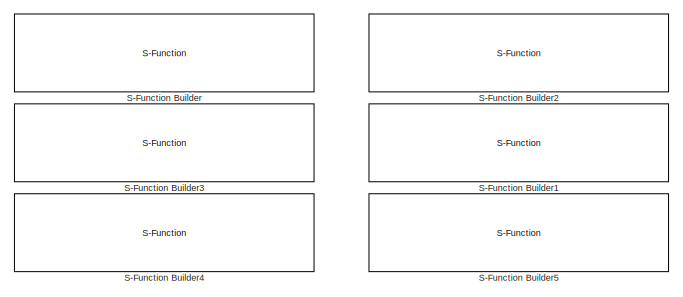
[diagram: root canvas - part 1/4, top center region]
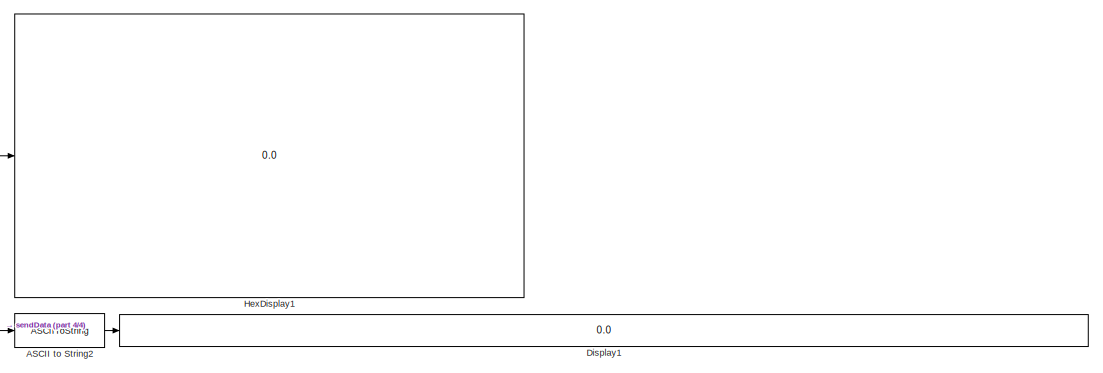
[diagram: root canvas - part 2/4, middle right region]
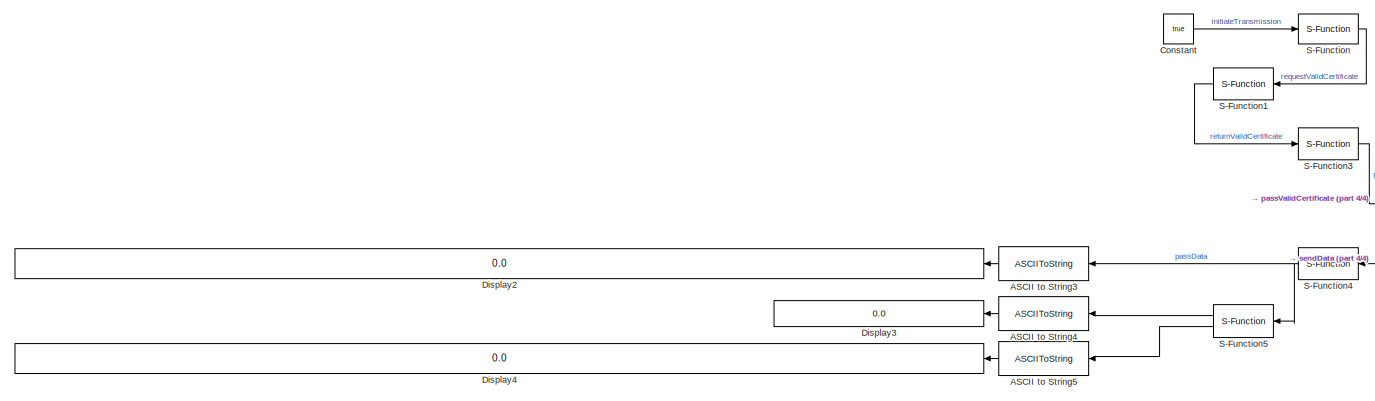
[diagram: root canvas - part 3/4, bottom left region]
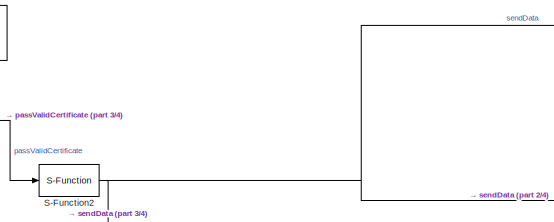
[diagram: root canvas - part 4/4, bottom center region]
MODEL slx_33cd072985de
KIND model
CONFIG AbsTol = auto
CONFIG EnableMultiTasking = off
CONFIG FixedStep = auto
CONFIG MaxStep = auto
CONFIG MinStep = auto
CONFIG RelTol = 1e-3
CONFIG SampleTimeConstraint = Unconstrained
CONFIG SolverName = VariableStepAuto
CONFIG StartTime = 0.0
CONFIG StopTime = 10.0
BLOCK [ASCIIToString] ASCII to String2
BLOCK [ASCIIToString] ASCII to String3
BLOCK [ASCIIToString] ASCII to String4
BLOCK [ASCIIToString] ASCII to String5
BLOCK [Constant] Constant
  OutDataTypeStr = boolean
  Value = true
BLOCK [Display] Display1
  Decimation = 1
  Ports = [1]
BLOCK [Display] Display2
  Decimation = 1
  Ports = [1]
BLOCK [Display] Display3
  Decimation = 1
  Ports = [1]
BLOCK [Display] Display4
  Decimation = 1
  Ports = [1]
BLOCK [Display] HexDisplay1
  Decimation = 1
  Format = hex (Stored Integer)
  Ports = [1]
BLOCK [S-Function] S-Function
  EnableBusSupport = off
  FunctionName = sfunc_GW1
  Ports = [1, 1]
  SFcnIsStateOwnerBlock = off
  SFunctionDeploymentMode = off
BLOCK [S-Function] S-Function Builder
  Commented = on
  CopyFcn = set_param(gcbh,'LinkStatus','none')
  EnableBusSupport = off
  FunctionName = sfunc_GW1
  OpenFcn = sfunctionwizard(gcbh)
  Ports = [1, 1]
  SFcnIsStateOwnerBlock = off
  SFunctionDeploymentMode = off
  SFunctionModules = sfunc_GW1_wrapper
BLOCK [S-Function] S-Function Builder1
  Commented = on
  CopyFcn = set_param(gcbh,'LinkStatus','none')
  EnableBusSupport = off
  FunctionName = sfunc_GSE1
  OpenFcn = sfunctionwizard(gcbh)
  Ports = [1, 1]
  SFcnIsStateOwnerBlock = off
  SFunctionDeploymentMode = off
  SFunctionModules = sfunc_GSE1_wrapper
BLOCK [S-Function] S-Function Builder2
  Commented = on
  CopyFcn = set_param(gcbh,'LinkStatus','none')
  EnableBusSupport = off
  FunctionName = sfunc_ECOM
  OpenFcn = sfunctionwizard(gcbh)
  Ports = [1, 1]
  SFcnIsStateOwnerBlock = off
  SFunctionDeploymentMode = off
  SFunctionModules = sfunc_ECOM_wrapper
BLOCK [S-Function] S-Function Builder3
  Commented = on
  CopyFcn = set_param(gcbh,'LinkStatus','none')
  EnableBusSupport = off
  FunctionName = sfunc_GW2
  OpenFcn = sfunctionwizard(gcbh)
  Ports = [1, 1]
  SFcnIsStateOwnerBlock = off
  SFunctionDeploymentMode = off
  SFunctionModules = sfunc_GW2_wrapper
BLOCK [S-Function] S-Function Builder4
  Commented = on
  CopyFcn = set_param(gcbh,'LinkStatus','none')
  EnableBusSupport = off
  FunctionName = sfunc_GW3
  OpenFcn = sfunctionwizard(gcbh)
  Ports = [1, 1]
  SFcnIsStateOwnerBlock = off
  SFunctionDeploymentMode = off
  SFunctionModules = sfunc_GW3_wrapper
BLOCK [S-Function] S-Function Builder5
  Commented = on
  CopyFcn = set_param(gcbh,'LinkStatus','none')
  EnableBusSupport = off
  FunctionName = sfunc_GSE2
  OpenFcn = sfunctionwizard(gcbh)
  Ports = [1, 2]
  SFcnIsStateOwnerBlock = off
  SFunctionDeploymentMode = off
  SFunctionModules = sfunc_GSE2_wrapper
BLOCK [S-Function] S-Function1
  EnableBusSupport = off
  FunctionName = sfunc_GSE1
  Ports = [1, 1]
  SFcnIsStateOwnerBlock = off
  SFunctionDeploymentMode = off
BLOCK [S-Function] S-Function2
  EnableBusSupport = off
  FunctionName = sfunc_ECOM
  Ports = [1, 1]
  SFcnIsStateOwnerBlock = off
  SFunctionDeploymentMode = off
BLOCK [S-Function] S-Function3
  EnableBusSupport = off
  FunctionName = sfunc_GW2
  Ports = [1, 1]
  SFcnIsStateOwnerBlock = off
  SFunctionDeploymentMode = off
BLOCK [S-Function] S-Function4
  EnableBusSupport = off
  FunctionName = sfunc_GW3
  Ports = [1, 1]
  SFcnIsStateOwnerBlock = off
  SFunctionDeploymentMode = off
BLOCK [S-Function] S-Function5
  EnableBusSupport = off
  FunctionName = sfunc_GSE2
  Ports = [1, 2]
  SFcnIsStateOwnerBlock = off
  SFunctionDeploymentMode = off
LINE ASCII to String2:1 -> Display1:1
LINE ASCII to String3:1 -> Display2:1
LINE ASCII to String4:1 -> Display3:1
LINE ASCII to String5:1 -> Display4:1
LINE Constant:1 -> S-Function:1
LINE S-Function1:1 -> S-Function3:1
NET S-Function2:1 -> ASCII to String2:1, HexDisplay1:1, S-Function4:1
LINE S-Function3:1 -> S-Function2:1
NET S-Function4:1 -> ASCII to String3:1, S-Function5:1
LINE S-Function5:1 -> ASCII to String4:1
LINE S-Function5:2 -> ASCII to String5:1
LINE S-Function:1 -> S-Function1:1
note: NET lines group one-source signal fan-out (src -> all destinations, sorted); 1:1 wires keep LINE
